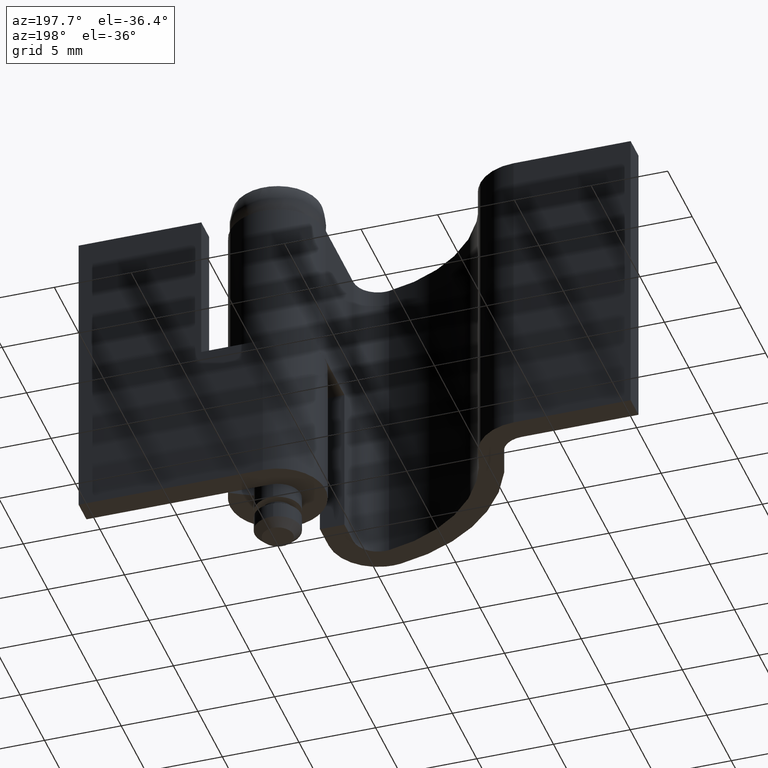
[diagram: clean part render]
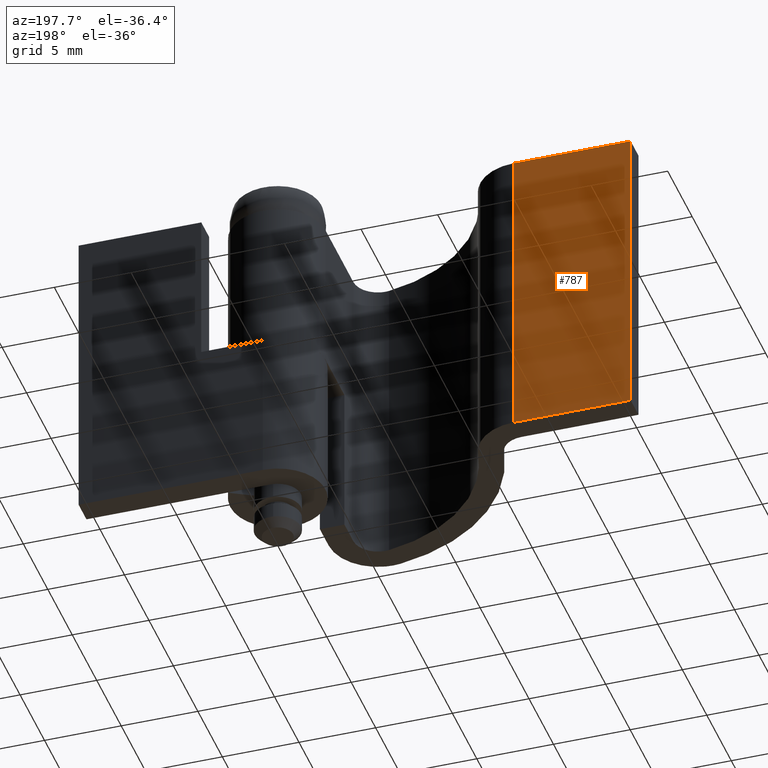
[diagram: same view with one face highlighted and labeled with its STEP entity id]
A machine part, auxiliary view. The second image highlights one B-rep face of the part: STEP entity #787.
In plain terms, the highlighted face is a freeform B-spline surface patch.
Its self-contained STEP definition (entity closure, byte-faithful):
#155=CARTESIAN_POINT('',(-16.368017220563949,3.099976000000000,23.0));
#156=VERTEX_POINT('',#155);
#157=CARTESIAN_POINT('',(-24.0,3.099976000000000,23.0));
#158=VERTEX_POINT('',#157);
#159=CARTESIAN_POINT('',(-16.368017220563949,3.099976000000000,23.0));
#160=CARTESIAN_POINT('',(-24.0,3.099976000000000,23.0));
#161=QUASI_UNIFORM_CURVE('',1,(#159,#160),.UNSPECIFIED.,.F.,.U.);
#162=EDGE_CURVE('',#156,#158,#161,.T.);
#402=CARTESIAN_POINT('',(-24.0,3.099976000000000,3.0));
#403=VERTEX_POINT('',#402);
#409=CARTESIAN_POINT('',(-16.368017220563949,3.099976000000000,3.0));
#410=VERTEX_POINT('',#409);
#411=CARTESIAN_POINT('',(-16.368017220563949,3.099976000000000,3.0));
#412=CARTESIAN_POINT('',(-24.0,3.099976000000000,3.0));
#413=QUASI_UNIFORM_CURVE('',1,(#411,#412),.UNSPECIFIED.,.F.,.U.);
#414=EDGE_CURVE('',#410,#403,#413,.T.);
#493=CARTESIAN_POINT('',(-16.368017220563949,3.099976000000000,3.0));
#494=CARTESIAN_POINT('',(-16.368017220563949,3.099976000000000,23.0));
#495=QUASI_UNIFORM_CURVE('',1,(#493,#494),.UNSPECIFIED.,.F.,.U.);
#496=EDGE_CURVE('',#410,#156,#495,.T.);
#766=CARTESIAN_POINT('',(-24.0,3.099976000000000,3.0));
#767=CARTESIAN_POINT('',(-24.0,3.099976000000000,23.0));
#768=QUASI_UNIFORM_CURVE('',1,(#766,#767),.UNSPECIFIED.,.F.,.U.);
#769=EDGE_CURVE('',#403,#158,#768,.T.);
#776=CARTESIAN_POINT('',(-24.381217525040569,3.099976000000000,23.998999961236120));
#777=CARTESIAN_POINT('',(-24.381217525040569,3.099976000000000,2.000999502322078));
#778=CARTESIAN_POINT('',(-15.986799490817649,3.099976000000000,23.998999961236120));
#779=CARTESIAN_POINT('',(-15.986799490817649,3.099976000000000,2.000999502322078));
#780=B_SPLINE_SURFACE_WITH_KNOTS('',1,1,((#776,#778),(#777,#779)),.UNSPECIFIED.,.F.,.F.,.U.,(2,2),(2,2),(0.0,21.998000458914049),(0.0,8.394418034222916),.UNSPECIFIED.);
#781=ORIENTED_EDGE('',*,*,#162,.F.);
#782=ORIENTED_EDGE('',*,*,#496,.F.);
#783=ORIENTED_EDGE('',*,*,#414,.T.);
#784=ORIENTED_EDGE('',*,*,#769,.T.);
#785=EDGE_LOOP('',(#781,#782,#783,#784));
#786=FACE_OUTER_BOUND('',#785,.T.);
#787=ADVANCED_FACE('',(#786),#780,.F.);